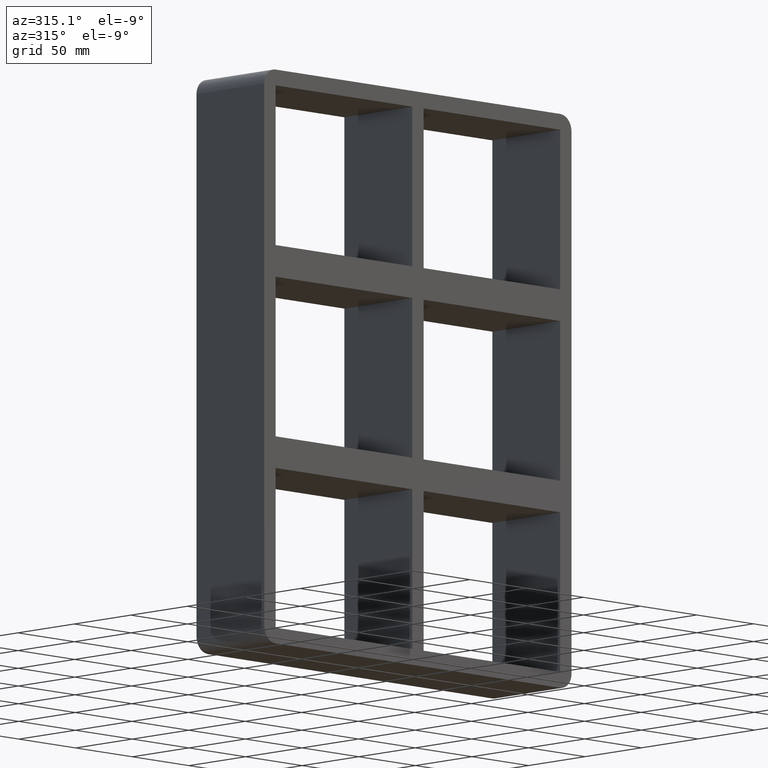
[diagram: clean part render]
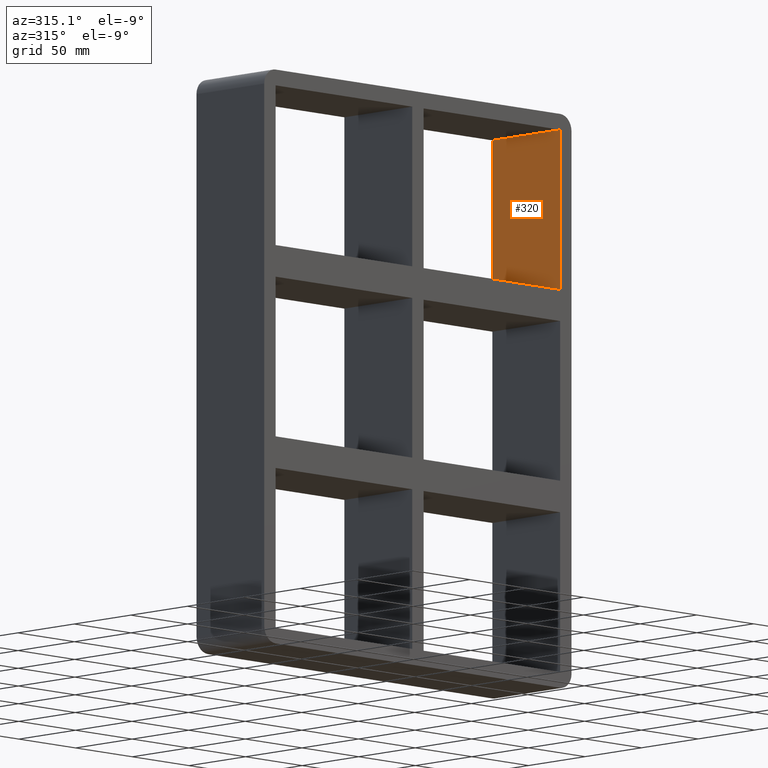
[diagram: same view with one face highlighted and labeled with its STEP entity id]
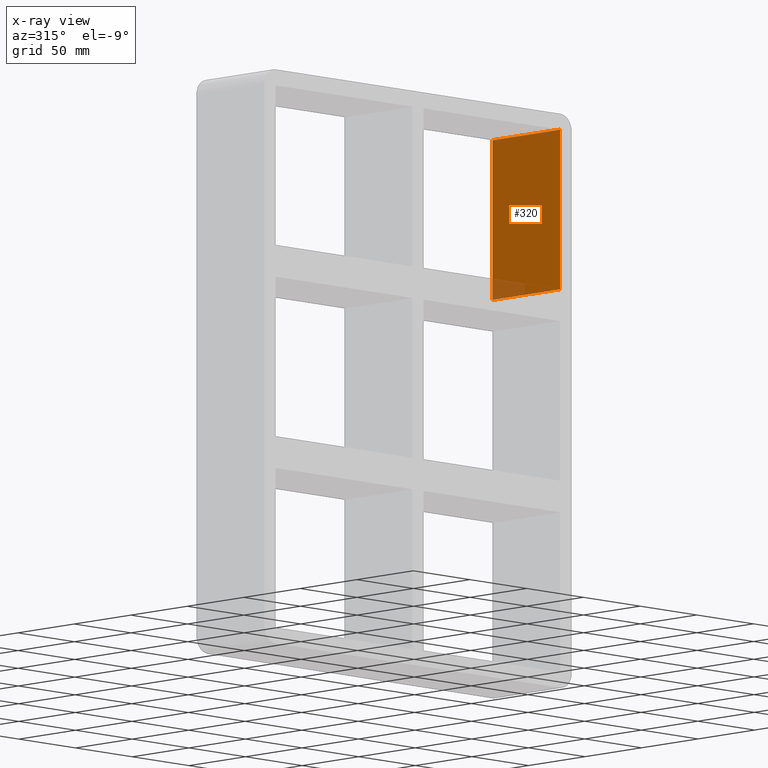
[diagram: x-ray of the same camera — body ghosted, the highlighted face saturated]
A machine part, auxiliary view. The second image highlights one B-rep face of the part: STEP entity #320.
The next image is the same camera in x-ray: the body ghosted, the highlighted face saturated — about 5% of this face is hidden behind the body in this view.
In plain terms, the highlighted planar face has unit normal (1, 0, 0).
Its self-contained STEP definition (entity closure, byte-faithful):
#123=CARTESIAN_POINT('',(125.49999999999986,-3.0,70.499999999999901));
#124=VERTEX_POINT('',#123);
#131=CARTESIAN_POINT('',(125.49999999999986,57.0,70.499999999999901));
#132=VERTEX_POINT('',#131);
#133=CARTESIAN_POINT('',(125.49999999999997,57.000000000000007,70.499999999999901));
#134=DIRECTION('',(0.0,-1.0,0.0));
#135=VECTOR('',#134,60.000000000000007);
#136=LINE('',#133,#135);
#137=EDGE_CURVE('',#132,#124,#136,.T.);
#290=CARTESIAN_POINT('',(125.49999999999996,0.0,171.50000000000003));
#291=DIRECTION('',(1.0,0.0,0.0));
#292=DIRECTION('',(0.0,0.0,-1.0));
#293=AXIS2_PLACEMENT_3D('',#290,#291,#292);
#294=PLANE('',#293);
#295=ORIENTED_EDGE('',*,*,#137,.T.);
#296=CARTESIAN_POINT('',(125.49999999999996,-3.0,171.5));
#297=VERTEX_POINT('',#296);
#298=CARTESIAN_POINT('',(125.49999999999996,-3.0,171.5));
#299=DIRECTION('',(0.0,0.0,-1.0));
#300=VECTOR('',#299,101.0000000000001);
#301=LINE('',#298,#300);
#302=EDGE_CURVE('',#297,#124,#301,.T.);
#303=ORIENTED_EDGE('',*,*,#302,.F.);
#304=CARTESIAN_POINT('',(125.49999999999996,57.0,171.5));
#305=VERTEX_POINT('',#304);
#306=CARTESIAN_POINT('',(125.49999999999996,-3.0,171.50000000000003));
#307=DIRECTION('',(0.0,1.0,0.0));
#308=VECTOR('',#307,60.0);
#309=LINE('',#306,#308);
#310=EDGE_CURVE('',#297,#305,#309,.T.);
#311=ORIENTED_EDGE('',*,*,#310,.T.);
#312=CARTESIAN_POINT('',(125.49999999999996,57.0,70.499999999999901));
#313=DIRECTION('',(0.0,0.0,1.0));
#314=VECTOR('',#313,101.0000000000001);
#315=LINE('',#312,#314);
#316=EDGE_CURVE('',#132,#305,#315,.T.);
#317=ORIENTED_EDGE('',*,*,#316,.F.);
#318=EDGE_LOOP('',(#295,#303,#311,#317));
#319=FACE_OUTER_BOUND('',#318,.T.);
#320=ADVANCED_FACE('',(#319),#294,.F.);